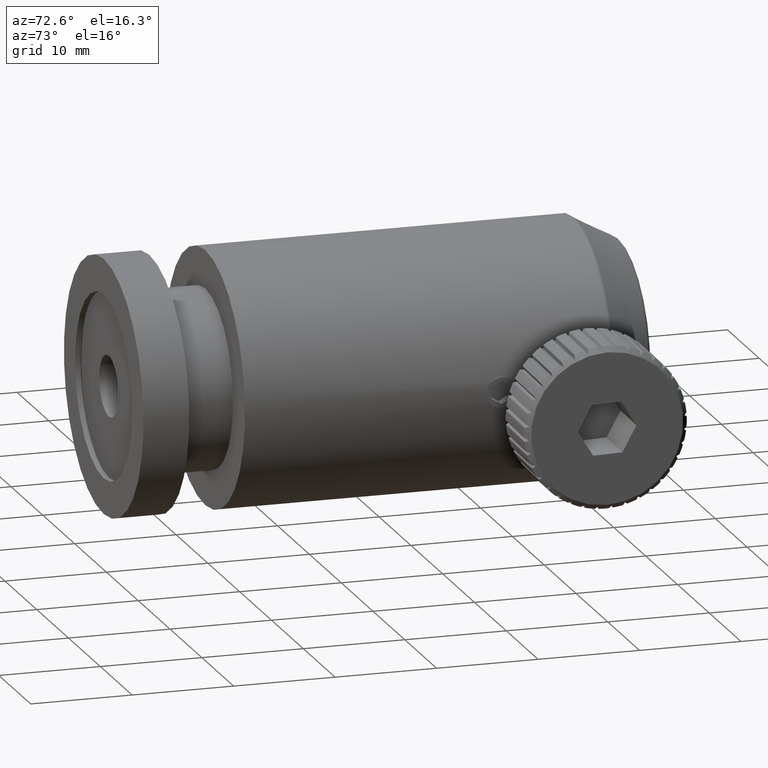
[diagram: clean part render]
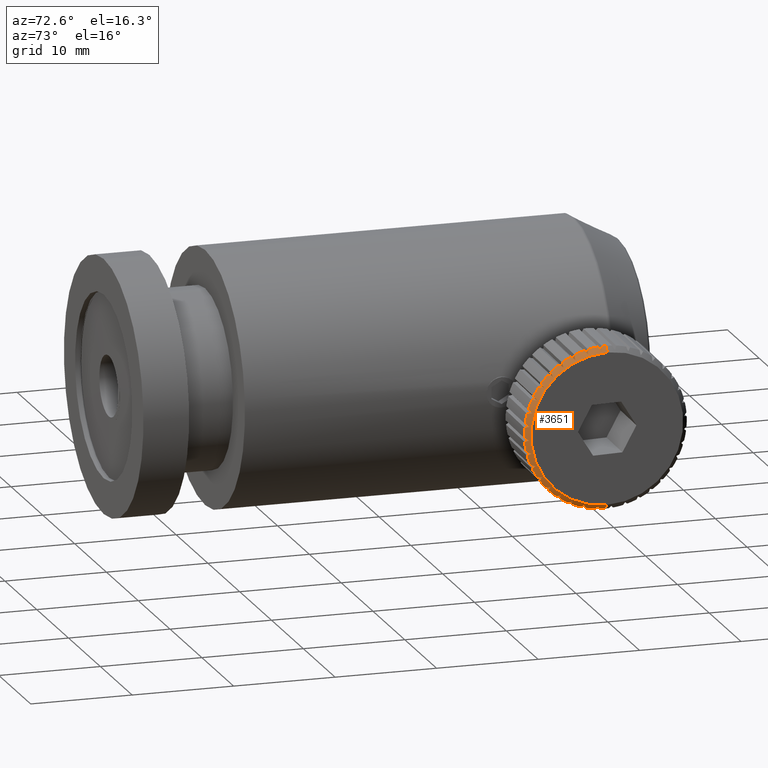
[diagram: same view with one face highlighted and labeled with its STEP entity id]
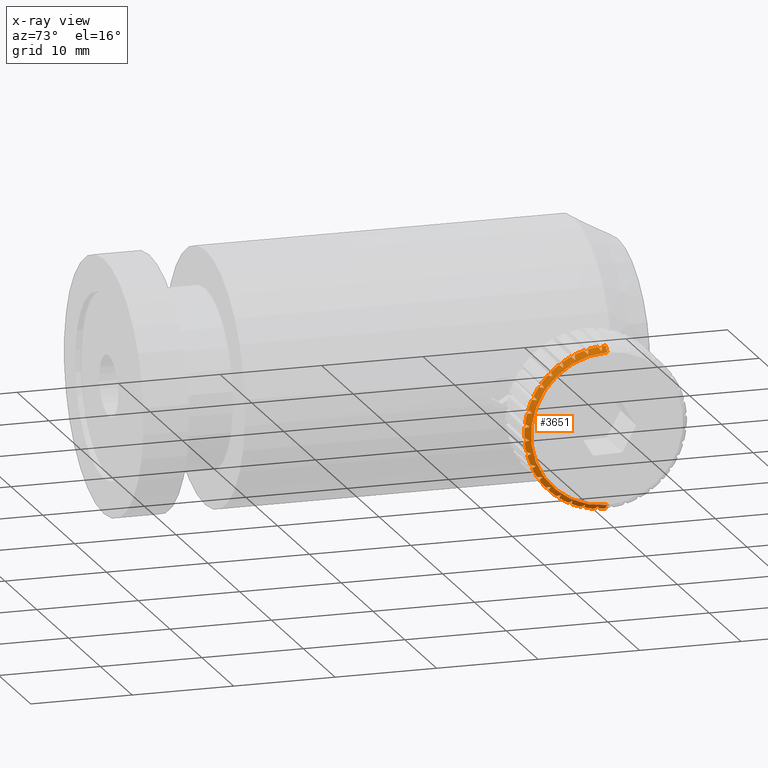
[diagram: x-ray of the same camera — body ghosted, the highlighted face saturated]
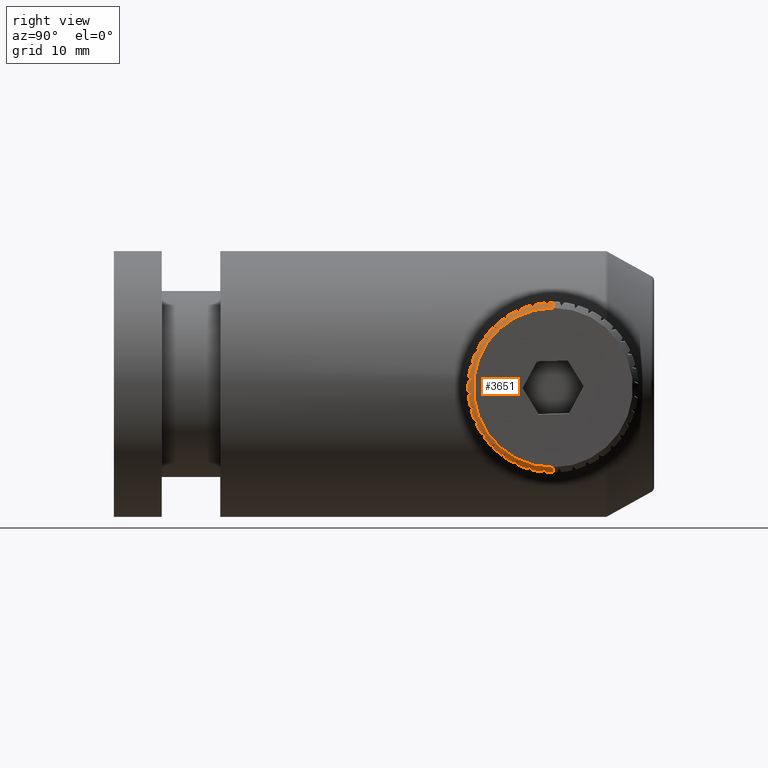
[diagram: same view with one face highlighted and labeled with its STEP entity id]
A machine part, auxiliary view. The second image highlights one B-rep face of the part: STEP entity #3651.
The next image is the same camera in x-ray: the body ghosted, the highlighted face saturated — about 0% of this face is hidden behind the body in this view.
A second angle (right view) of the same face is appended — the face is thin or edge-on in the first view.
In plain terms, the highlighted conical surface has half-angle 45 deg.
Its self-contained STEP definition (entity closure, byte-faithful):
#14 = EDGE_CURVE ( 'NONE', #3196, #429, #2690, .T. ) ;
#27 = ORIENTED_EDGE ( 'NONE', *, *, #4720, .T. ) ;
#38 = ORIENTED_EDGE ( 'NONE', *, *, #481, .T. ) ;
#41 = CIRCLE ( 'NONE', #3111, 8.000000000000000000 ) ;
#58 = CARTESIAN_POINT ( 'NONE',  ( 20.75757565068358400, 25.81499106419347100, 1.664058057186805800 ) ) ;
#63 = DIRECTION ( 'NONE',  ( -0.9999240596820524500, -1.348150961071062400E-033, 0.01232375222744032000 ) ) ;
#67 = B_SPLINE_CURVE_WITH_KNOTS ( 'NONE', 3,
 ( #3313, #4292, #3186, #4681 ),
 .UNSPECIFIED., .F., .F.,
 ( 4, 4 ),
 ( 0.0000000000000000000, 0.0005324411408961824500 ),
 .UNSPECIFIED. ) ;
#73 = VERTEX_POINT ( 'NONE', #2910 ) ;
#85 = EDGE_CURVE ( 'NONE', #1852, #702, #4937, .T. ) ;
#125 = AXIS2_PLACEMENT_3D ( 'NONE', #4686, #272, #1589 ) ;
#128 = ORIENTED_EDGE ( 'NONE', *, *, #85, .T. ) ;
#130 = CARTESIAN_POINT ( 'NONE',  ( 20.97145901216604000, 25.12059719410934400, 9.514513426488571600 ) ) ;
#148 = B_SPLINE_CURVE_WITH_KNOTS ( 'NONE', 3,
 ( #4193, #4240, #5522, #2451 ),
 .UNSPECIFIED., .F., .F.,
 ( 4, 4 ),
 ( 0.0000000000000000000, 0.0005324411408961811500 ),
 .UNSPECIFIED. ) ;
#149 = VERTEX_POINT ( 'NONE', #3881 ) ;
#153 = CARTESIAN_POINT ( 'NONE',  ( 20.65928727422893700, 25.18967221521239000, -6.310859856632926100 ) ) ;
#162 = CARTESIAN_POINT ( 'NONE',  ( 21.16285707547740100, 19.61974459652797300, 6.147323410354159600 ) ) ;
#171 = EDGE_CURVE ( 'NONE', #2620, #3217, #3599, .T. ) ;
#194 = CARTESIAN_POINT ( 'NONE',  ( 21.08400180696556000, 23.86060426881147500, 9.177157633810844900 ) ) ;
#195 = B_SPLINE_CURVE_WITH_KNOTS ( 'NONE', 3,
 ( #3059, #1369, #948, #2160 ),
 .UNSPECIFIED., .F., .F.,
 ( 4, 4 ),
 ( 1.734723475976807100E-018, 0.0005324411132999608100 ),
 .UNSPECIFIED. ) ;
#201 = CARTESIAN_POINT ( 'NONE',  ( 20.85377515683226700, 24.06399457958404400, 9.469489305100157800 ) ) ;
#219 = CARTESIAN_POINT ( 'NONE',  ( 20.75757565068358400, 25.81499106419347100, 1.664058057186806000 ) ) ;
#224 = VERTEX_POINT ( 'NONE', #4916 ) ;
#230 = ORIENTED_EDGE ( 'NONE', *, *, #618, .T. ) ;
#237 = CARTESIAN_POINT ( 'NONE',  ( 20.75757565068358400, 25.81499106419347100, 1.664058057186805800 ) ) ;
#253 = ORIENTED_EDGE ( 'NONE', *, *, #3613, .T. ) ;
#265 = CARTESIAN_POINT ( 'NONE',  ( 20.79843378462173900, 18.53432205375644100, 4.979203510006776400 ) ) ;
#267 = CARTESIAN_POINT ( 'NONE',  ( 20.81339366844666100, 19.22064446198681200, 6.193017897907243900 ) ) ;
#272 = DIRECTION ( 'NONE',  ( -0.9999240596820524500, -1.348150961071062400E-033, 0.01232375222744032000 ) ) ;
#312 = VERTEX_POINT ( 'NONE', #2846 ) ;
#325 = CARTESIAN_POINT ( 'NONE',  ( 20.96930597826873900, 24.02741723373394200, 9.339820460752090300 ) ) ;
#333 = CARTESIAN_POINT ( 'NONE',  ( 21.10084147263923200, 18.18437789859295600, 1.115504187674670100 ) ) ;
#351 = CARTESIAN_POINT ( 'NONE',  ( 21.08461388591127100, 18.39481761667304100, -0.2011690219452357800 ) ) ;
#355 = CIRCLE ( 'NONE', #1811, 8.000000000000000000 ) ;
#365 = ORIENTED_EDGE ( 'NONE', *, *, #5472, .F. ) ;
#373 = AXIS2_PLACEMENT_3D ( 'NONE', #4078, #4978, #1476 ) ;
#375 = ORIENTED_EDGE ( 'NONE', *, *, #4449, .F. ) ;
#377 = CARTESIAN_POINT ( 'NONE',  ( 20.67630855705612100, 21.28568726670259500, -4.929787768242240600 ) ) ;
#380 = VERTEX_POINT ( 'NONE', #5046 ) ;
#389 = CARTESIAN_POINT ( 'NONE',  ( 20.77020033643559000, 17.88085180762996600, 2.688399247790608500 ) ) ;
#399 = CARTESIAN_POINT ( 'NONE',  ( 21.00206347251236100, 18.09714080968916200, 2.528847058926837000 ) ) ;
#411 = CARTESIAN_POINT ( 'NONE',  ( 20.69078806807229800, 19.93027418542668600, -3.754949847915953300 ) ) ;
#420 = EDGE_CURVE ( 'NONE', #1180, #530, #148, .T. ) ;
#426 = DIRECTION ( 'NONE',  ( -0.01232375222744034100, -1.084202172485504400E-014, -0.9999240596820524500 ) ) ;
#429 = VERTEX_POINT ( 'NONE', #5114 ) ;
#469 = CARTESIAN_POINT ( 'NONE',  ( 20.84856654274701200, 22.73509430130690100, 9.046873007293729800 ) ) ;
#478 = CARTESIAN_POINT ( 'NONE',  ( 21.18563438179998900, 21.52832253850988300, 7.995427476905117500 ) ) ;
#480 = CARTESIAN_POINT ( 'NONE',  ( 20.81888967044625700, 19.36172780813345200, -2.864651720670019500 ) ) ;
#481 = EDGE_CURVE ( 'NONE', #224, #2334, #4059, .T. ) ;
#508 = ORIENTED_EDGE ( 'NONE', *, *, #14, .T. ) ;
#514 = ORIENTED_EDGE ( 'NONE', *, *, #5056, .F. ) ;
#518 = CARTESIAN_POINT ( 'NONE',  ( 20.70439599867392700, 19.07860394488771000, -2.650830180469357300 ) ) ;
#529 = CARTESIAN_POINT ( 'NONE',  ( 21.07017774199532700, 21.40765609969576000, 8.055499624370915200 ) ) ;
#530 = VERTEX_POINT ( 'NONE', #265 ) ;
#539 = B_SPLINE_CURVE_WITH_KNOTS ( 'NONE', 3,
 ( #5239, #5303, #480, #1325 ),
 .UNSPECIFIED., .F., .F.,
 ( 4, 4 ),
 ( 0.0000000000000000000, 0.0005324411408961771400 ),
 .UNSPECIFIED. ) ;
#551 = DIRECTION ( 'NONE',  ( -0.9999240596820524500, 2.374008358027187900E-016, 0.01232375222744039500 ) ) ;
#581 = CARTESIAN_POINT ( 'NONE',  ( 21.08461388591127100, 18.39481761667304100, -0.2011690219452357800 ) ) ;
#585 = VERTEX_POINT ( 'NONE', #1226 ) ;
#589 = VERTEX_POINT ( 'NONE', #5092 ) ;
#591 = ORIENTED_EDGE ( 'NONE', *, *, #4168, .T. ) ;
#600 = EDGE_CURVE ( 'NONE', #4120, #5391, #4898, .T. ) ;
#602 = CARTESIAN_POINT ( 'NONE',  ( 20.93033533614570600, 19.35328310115287200, 6.177821742244614900 ) ) ;
#617 = CARTESIAN_POINT ( 'NONE',  ( 20.75757565068358400, 25.81499106419347100, 1.664058057186806000 ) ) ;
#618 = EDGE_CURVE ( 'NONE', #5139, #652, #1301, .T. ) ;
#629 = CIRCLE ( 'NONE', #2979, 8.000000000000000000 ) ;
#633 = EDGE_CURVE ( 'NONE', #2202, #2620, #1023, .T. ) ;
#652 = VERTEX_POINT ( 'NONE', #2494 ) ;
#659 = CARTESIAN_POINT ( 'NONE',  ( 20.96269608382697000, 22.47676278650946800, 8.803507336963669200 ) ) ;
#675 = CARTESIAN_POINT ( 'NONE',  ( 20.83354731924152500, 18.67355610874809800, -1.675360065152675900 ) ) ;
#677 = ORIENTED_EDGE ( 'NONE', *, *, #2929, .T. ) ;
#699 = CARTESIAN_POINT ( 'NONE',  ( 20.75302950396202900, 17.82350072088520700, 1.295193006848964500 ) ) ;
#702 = VERTEX_POINT ( 'NONE', #2995 ) ;
#705 = ORIENTED_EDGE ( 'NONE', *, *, #812, .T. ) ;
#718 = EDGE_CURVE ( 'NONE', #3996, #73, #1746, .T. ) ;
#719 = EDGE_LOOP ( 'NONE', ( #5266, #2295, #705, #514, #2662, #508, #3067, #1666, #3451, #4517, #3028, #1368, #5445, #1196, #4436, #365, #591, #38, #2115, #3295, #3020, #2864, #27, #4534, #3555, #5152, #128, #1312, #4009, #936, #5637, #1516, #1853, #4822, #5213, #2130, #1086, #3959, #1415, #375, #253, #4593, #3048, #3082, #230, #1585, #3890, #4809, #2431, #677, #4289, #3231, #4787, #5527, #3792, #1119, #4896, #5257 ) ) ;
#743 = CARTESIAN_POINT ( 'NONE',  ( 20.77789880041356000, 25.13526407178872500, -6.190567108820250300 ) ) ;
#746 = CARTESIAN_POINT ( 'NONE',  ( 21.01841718744234600, 18.36507313053842700, 3.855754052988150000 ) ) ;
#748 = CARTESIAN_POINT ( 'NONE',  ( 20.86612927938140800, 17.96249602343241800, 0.9682735664071626700 ) ) ;
#759 = CIRCLE ( 'NONE', #125, 8.000000000000000000 ) ;
#760 = CIRCLE ( 'NONE', #834, 8.000000000000000000 ) ;
#785 = CARTESIAN_POINT ( 'NONE',  ( 20.89608629864197200, 25.08070176916001500, -6.069924157371673300 ) ) ;
#803 = VERTEX_POINT ( 'NONE', #4032 ) ;
#812 = EDGE_CURVE ( 'NONE', #2779, #830, #5411, .T. ) ;
#814 = AXIS2_PLACEMENT_3D ( 'NONE', #4010, #1004, #1399 ) ;
#818 = CARTESIAN_POINT ( 'NONE',  ( 20.67920944437215900, 20.96074857051657100, -4.694415702316321800 ) ) ;
#830 = VERTEX_POINT ( 'NONE', #4852 ) ;
#834 = AXIS2_PLACEMENT_3D ( 'NONE', #945, #5237, #3957 ) ;
#836 = VERTEX_POINT ( 'NONE', #4456 ) ;
#896 = CARTESIAN_POINT ( 'NONE',  ( 20.91863117977943200, 18.78443330064394700, 5.228170423966376200 ) ) ;
#924 = AXIS2_PLACEMENT_3D ( 'NONE', #58, #3529, #4421 ) ;
#936 = ORIENTED_EDGE ( 'NONE', *, *, #5326, .T. ) ;
#943 = B_SPLINE_CURVE_WITH_KNOTS ( 'NONE', 3,
 ( #5031, #4171, #4971, #2400 ),
 .UNSPECIFIED., .F., .F.,
 ( 4, 4 ),
 ( 0.0000000000000000000, 0.0005324411408961842900 ),
 .UNSPECIFIED. ) ;
#945 = CARTESIAN_POINT ( 'NONE',  ( 20.75757565068358400, 25.81499106419347100, 1.664058057186806000 ) ) ;
#948 = CARTESIAN_POINT ( 'NONE',  ( 21.08689454220375800, 25.32935391003119500, 9.411867597142498100 ) ) ;
#955 = AXIS2_PLACEMENT_3D ( 'NONE', #1691, #5639, #3899 ) ;
#996 = DIRECTION ( 'NONE',  ( 0.01232375222744023500, 0.0000000000000000000, 0.9999240596820524500 ) ) ;
#1002 = EDGE_CURVE ( 'NONE', #1721, #4120, #3978, .T. ) ;
#1004 = DIRECTION ( 'NONE',  ( -0.9999240596820524500, -1.348150961071062400E-033, 0.01232375222744032000 ) ) ;
#1009 = CARTESIAN_POINT ( 'NONE',  ( 21.11727286625145800, 18.20579050027307800, 2.448713871198116000 ) ) ;
#1022 = DIRECTION ( 'NONE',  ( -0.01232375222744034100, 0.0000000000000000000, -0.9999240596820524500 ) ) ;
#1023 = B_SPLINE_CURVE_WITH_KNOTS ( 'NONE', 3,
 ( #2913, #3371, #2510, #1201 ),
 .UNSPECIFIED., .F., .F.,
 ( 4, 4 ),
 ( 8.673617379884035500E-019, 0.0005324411408961726900 ),
 .UNSPECIFIED. ) ;
#1033 = CIRCLE ( 'NONE', #373, 8.000000000000000000 ) ;
#1077 = EDGE_CURVE ( 'NONE', #1686, #803, #943, .T. ) ;
#1086 = ORIENTED_EDGE ( 'NONE', *, *, #4691, .F. ) ;
#1092 = CARTESIAN_POINT ( 'NONE',  ( 20.66347501111357900, 23.42838648187210300, -5.971075447688871700 ) ) ;
#1094 = DIRECTION ( 'NONE',  ( -0.9999240596820524500, -1.348150961071062400E-033, 0.01232375222744032000 ) ) ;
#1112 = CARTESIAN_POINT ( 'NONE',  ( 20.75757565068358400, 25.81499106419347100, 1.664058057186806000 ) ) ;
#1119 = ORIENTED_EDGE ( 'NONE', *, *, #1002, .T. ) ;
#1127 = CARTESIAN_POINT ( 'NONE',  ( 21.06908317307874900, 18.83071555016709600, -1.461299308456103700 ) ) ;
#1129 = DIRECTION ( 'NONE',  ( -0.9999240596820524500, -1.348150961071062400E-033, 0.01232375222744032000 ) ) ;
#1131 = CARTESIAN_POINT ( 'NONE',  ( 20.82665755004713000, 20.10733275482484600, 7.269222132811677300 ) ) ;
#1146 = DIRECTION ( 'NONE',  ( -0.01232375222744034100, 0.0000000000000000000, -0.9999240596820524500 ) ) ;
#1157 = CARTESIAN_POINT ( 'NONE',  ( 20.76528192524157400, 17.83946748657745800, 2.289329419255707000 ) ) ;
#1159 = EDGE_CURVE ( 'NONE', #3358, #4782, #5224, .T. ) ;
#1180 = VERTEX_POINT ( 'NONE', #2923 ) ;
#1196 = ORIENTED_EDGE ( 'NONE', *, *, #2780, .T. ) ;
#1201 = CARTESIAN_POINT ( 'NONE',  ( 21.16285707547740100, 19.61974459652797300, 6.147323410354159600 ) ) ;
#1208 = B_SPLINE_CURVE_WITH_KNOTS ( 'NONE', 3,
 ( #699, #2884, #5524, #3343 ),
 .UNSPECIFIED., .F., .F.,
 ( 4, 4 ),
 ( 5.024899865237389500E-018, 0.0005324411408961752900 ),
 .UNSPECIFIED. ) ;
#1219 = CARTESIAN_POINT ( 'NONE',  ( 20.88634740982360000, 17.98884331790920400, 2.608731334287153600 ) ) ;
#1226 = CARTESIAN_POINT ( 'NONE',  ( 20.71510529199201400, 18.59532561300570200, -1.781900015912498200 ) ) ;
#1228 = EDGE_CURVE ( 'NONE', #4953, #429, #629, .T. ) ;
#1238 = CARTESIAN_POINT ( 'NONE',  ( 20.77020033643559000, 17.88085180762996600, 2.688399247790608500 ) ) ;
#1248 = AXIS2_PLACEMENT_3D ( 'NONE', #4058, #2752, #1022 ) ;
#1261 = CARTESIAN_POINT ( 'NONE',  ( 21.07908674212100000, 22.70754764976361500, 8.778358661564064700 ) ) ;
#1267 = CARTESIAN_POINT ( 'NONE',  ( 20.71961976609167200, 18.43161541819247500, -1.415604817360371700 ) ) ;
#1301 = B_SPLINE_CURVE_WITH_KNOTS ( 'NONE', 3,
 ( #2485, #4705, #4648, #5544 ),
 .UNSPECIFIED., .F., .F.,
 ( 4, 4 ),
 ( 0.0000000000000000000, 0.0005324411408961796300 ),
 .UNSPECIFIED. ) ;
#1312 = ORIENTED_EDGE ( 'NONE', *, *, #4219, .F. ) ;
#1319 = VERTEX_POINT ( 'NONE', #1736 ) ;
#1322 = EDGE_CURVE ( 'NONE', #4254, #2955, #1575, .T. ) ;
#1325 = CARTESIAN_POINT ( 'NONE',  ( 20.70030044892462600, 19.30343833836783300, -2.983134713729433500 ) ) ;
#1326 = CARTESIAN_POINT ( 'NONE',  ( 20.75757565068358100, 25.81499106419347100, 1.664058057186806000 ) ) ;
#1329 = CARTESIAN_POINT ( 'NONE',  ( 20.96404309767120100, 22.72134046049580600, 8.912801089087221100 ) ) ;
#1338 = B_SPLINE_CURVE_WITH_KNOTS ( 'NONE', 3,
 ( #2096, #2837, #2977, #3003 ),
 .UNSPECIFIED., .F., .F.,
 ( 4, 4 ),
 ( 0.0000000000000000000, 0.0005324411408961755100 ),
 .UNSPECIFIED. ) ;
#1361 = CARTESIAN_POINT ( 'NONE',  ( 20.75757565068358400, 25.81499106419347100, 1.664058057186805800 ) ) ;
#1362 = CIRCLE ( 'NONE', #3095, 8.000000000000000000 ) ;
#1368 = ORIENTED_EDGE ( 'NONE', *, *, #3769, .T. ) ;
#1369 = CARTESIAN_POINT ( 'NONE',  ( 20.97169390335596300, 25.38780853325458900, 9.533571820189099100 ) ) ;
#1399 = DIRECTION ( 'NONE',  ( -0.01232375222744034100, 0.0000000000000000000, -0.9999240596820524500 ) ) ;
#1415 = ORIENTED_EDGE ( 'NONE', *, *, #3854, .T. ) ;
#1422 = CARTESIAN_POINT ( 'NONE',  ( 20.93842422905619200, 19.34500459818307400, -2.634711043945321000 ) ) ;
#1424 = CARTESIAN_POINT ( 'NONE',  ( 20.88306360435444400, 17.96121283838063900, 2.342290072297884300 ) ) ;
#1434 = EDGE_CURVE ( 'NONE', #1715, #2365, #539, .T. ) ;
#1450 = CARTESIAN_POINT ( 'NONE',  ( 20.92538283742224100, 20.18932794833977000, -3.692862897849535000 ) ) ;
#1474 = CARTESIAN_POINT ( 'NONE',  ( 21.01377516538519400, 25.02596201783262200, -5.948877974856358700 ) ) ;
#1476 = DIRECTION ( 'NONE',  ( -0.01232375222744034100, 0.0000000000000000000, -0.9999240596820524500 ) ) ;
#1492 = B_SPLINE_CURVE_WITH_KNOTS ( 'NONE', 3,
 ( #5447, #4544, #659, #4976 ),
 .UNSPECIFIED., .F., .F.,
 ( 4, 4 ),
 ( 0.0000000000000000000, 0.0005324411022510849100 ),
 .UNSPECIFIED. ) ;
#1516 = ORIENTED_EDGE ( 'NONE', *, *, #4492, .T. ) ;
#1546 = B_SPLINE_CURVE_WITH_KNOTS ( 'NONE', 3,
 ( #333, #4258, #748, #4732 ),
 .UNSPECIFIED., .F., .F.,
 ( 4, 4 ),
 ( 0.0000000000000000000, 0.0005324411408961738900 ),
 .UNSPECIFIED. ) ;
#1567 = CARTESIAN_POINT ( 'NONE',  ( 21.19899342165304600, 23.95393595884236100, 9.079354725128636600 ) ) ;
#1575 = LINE ( 'NONE', #5207, #3348 ) ;
#1585 = ORIENTED_EDGE ( 'NONE', *, *, #2554, .F. ) ;
#1589 = DIRECTION ( 'NONE',  ( -0.01232375222744034100, 0.0000000000000000000, -0.9999240596820524500 ) ) ;
#1595 = CARTESIAN_POINT ( 'NONE',  ( 21.34996582223040200, 25.81499106419347100, 9.157326628688489100 ) ) ;
#1656 = EDGE_CURVE ( 'NONE', #3659, #4323, #5181, .T. ) ;
#1666 = ORIENTED_EDGE ( 'NONE', *, *, #4476, .T. ) ;
#1686 = VERTEX_POINT ( 'NONE', #2229 ) ;
#1691 = CARTESIAN_POINT ( 'NONE',  ( 20.75757565068358400, 25.81499106419347100, 1.664058057186805800 ) ) ;
#1707 = CARTESIAN_POINT ( 'NONE',  ( 21.04196442811584300, 20.31945990566140400, -3.661658830161725700 ) ) ;
#1715 = VERTEX_POINT ( 'NONE', #1777 ) ;
#1721 = VERTEX_POINT ( 'NONE', #1798 ) ;
#1736 = CARTESIAN_POINT ( 'NONE',  ( 21.03120038532841500, 21.32707158376096100, -4.535031254725102400 ) ) ;
#1741 = DIRECTION ( 'NONE',  ( -0.9999240596820524500, -1.348150961071062400E-033, 0.01232375222744032000 ) ) ;
#1746 = B_SPLINE_CURVE_WITH_KNOTS ( 'NONE', 3,
 ( #1267, #5160, #3052, #4770 ),
 .UNSPECIFIED., .F., .F.,
 ( 4, 4 ),
 ( 2.168404344971008900E-019, 0.0005324411408961814700 ),
 .UNSPECIFIED. ) ;
#1777 = CARTESIAN_POINT ( 'NONE',  ( 21.05472122699215700, 19.47882716094090600, -2.626598250758988200 ) ) ;
#1787 = CARTESIAN_POINT ( 'NONE',  ( 20.85257221387587400, 23.67480885510590100, 9.371884973048802100 ) ) ;
#1798 = CARTESIAN_POINT ( 'NONE',  ( 20.65979728434768600, 24.79057207888624200, -6.269478678318915100 ) ) ;
#1799 = AXIS2_PLACEMENT_3D ( 'NONE', #3126, #3930, #3557 ) ;
#1810 = CARTESIAN_POINT ( 'NONE',  ( 21.06069898325461800, 20.46054492962904400, 7.286412519581056700 ) ) ;
#1811 = AXIS2_PLACEMENT_3D ( 'NONE', #1361, #4382, #5255 ) ;
#1814 = B_SPLINE_CURVE_WITH_KNOTS ( 'NONE', 3,
 ( #5034, #1988, #5218, #2612 ),
 .UNSPECIFIED., .F., .F.,
 ( 4, 4 ),
 ( 1.734723475976807100E-018, 0.0005324411408961851600 ),
 .UNSPECIFIED. ) ;
#1840 = EDGE_CURVE ( 'NONE', #1721, #1957, #4400, .T. ) ;
#1852 = VERTEX_POINT ( 'NONE', #4118 ) ;
#1853 = ORIENTED_EDGE ( 'NONE', *, *, #3442, .T. ) ;
#1879 = CARTESIAN_POINT ( 'NONE',  ( 21.04196442811584300, 20.31945990566140400, -3.661658830161725700 ) ) ;
#1885 = DIRECTION ( 'NONE',  ( -0.01232375222744034100, 0.0000000000000000000, -0.9999240596820524500 ) ) ;
#1887 = EDGE_CURVE ( 'NONE', #589, #4713, #2572, .T. ) ;
#1913 = VECTOR ( 'NONE', #2191, 1000.000000000000100 ) ;
#1914 = CARTESIAN_POINT ( 'NONE',  ( 21.18563438179998900, 21.52832253850988300, 7.995427476905117500 ) ) ;
#1944 = VERTEX_POINT ( 'NONE', #4174 ) ;
#1957 = VERTEX_POINT ( 'NONE', #4701 ) ;
#1987 = CONICAL_SURFACE ( 'NONE', #3879, 8.000000000000001800, 0.7853981633974437300 ) ;
#1988 = CARTESIAN_POINT ( 'NONE',  ( 20.95606517751202300, 21.50926269588006800, 8.265488465752095900 ) ) ;
#2019 = EDGE_CURVE ( 'NONE', #2955, #5391, #41, .T. ) ;
#2029 = VERTEX_POINT ( 'NONE', #5413 ) ;
#2032 = CARTESIAN_POINT ( 'NONE',  ( 21.08461388591127100, 18.39481761667304100, -0.2011690219452357800 ) ) ;
#2096 = CARTESIAN_POINT ( 'NONE',  ( 21.01688832155534200, 23.71662533055851400, -5.696282848093844100 ) ) ;
#2098 = CARTESIAN_POINT ( 'NONE',  ( 20.78804396541905300, 22.24916454880482400, -5.367409162180592800 ) ) ;
#2104 = CARTESIAN_POINT ( 'NONE',  ( 20.74809725215794400, 17.85204813203920800, 0.8950001795106034000 ) ) ;
#2115 = ORIENTED_EDGE ( 'NONE', *, *, #3074, .F. ) ;
#2118 = CARTESIAN_POINT ( 'NONE',  ( 20.75757565068358400, 25.81499106419347100, 1.664058057186805800 ) ) ;
#2124 = CARTESIAN_POINT ( 'NONE',  ( 20.70030044892462600, 19.30343833836783300, -2.983134713729433500 ) ) ;
#2125 = CARTESIAN_POINT ( 'NONE',  ( 20.65898563286405900, 25.81499106419347100, -6.335334420269613400 ) ) ;
#2130 = ORIENTED_EDGE ( 'NONE', *, *, #1159, .T. ) ;
#2147 = CARTESIAN_POINT ( 'NONE',  ( 21.19362152349766500, 22.69370996641551100, 8.643489891707870900 ) ) ;
#2160 = CARTESIAN_POINT ( 'NONE',  ( 21.20158682861517000, 25.27070916890598800, 9.289778463784749400 ) ) ;
#2166 = CIRCLE ( 'NONE', #4625, 7.500000000000011500 ) ;
#2191 = DIRECTION ( 'NONE',  ( -0.6983388745030786300, 1.678677408554573200E-016, 0.7157672920424439400 ) ) ;
#2202 = VERTEX_POINT ( 'NONE', #2532 ) ;
#2208 = CARTESIAN_POINT ( 'NONE',  ( 20.80288114559283800, 18.70971088069327900, 5.340053286521376600 ) ) ;
#2213 = B_SPLINE_CURVE_WITH_KNOTS ( 'NONE', 3,
 ( #1238, #1219, #399, #4714 ),
 .UNSPECIFIED., .F., .F.,
 ( 4, 4 ),
 ( 8.498374721940738900E-018, 0.0005324411408961800700 ),
 .UNSPECIFIED. ) ;
#2217 = VERTEX_POINT ( 'NONE', #389 ) ;
#2219 = CARTESIAN_POINT ( 'NONE',  ( 20.85606079760249500, 25.44609799999907900, 9.654941524177525400 ) ) ;
#2224 = DIRECTION ( 'NONE',  ( -0.01232375222744034100, 0.0000000000000000000, -0.9999240596820524500 ) ) ;
#2229 = CARTESIAN_POINT ( 'NONE',  ( 21.02275615862309600, 22.47104642427662600, -5.220178545276524100 ) ) ;
#2256 = VERTEX_POINT ( 'NONE', #2104 ) ;
#2289 = VERTEX_POINT ( 'NONE', #2208 ) ;
#2295 = ORIENTED_EDGE ( 'NONE', *, *, #4903, .T. ) ;
#2314 = CARTESIAN_POINT ( 'NONE',  ( 20.85265720031953800, 18.13720225501580100, -0.1248233848531314900 ) ) ;
#2334 = VERTEX_POINT ( 'NONE', #3426 ) ;
#2345 = CARTESIAN_POINT ( 'NONE',  ( 20.67630855705612100, 21.28568726670259500, -4.929787768242240600 ) ) ;
#2365 = VERTEX_POINT ( 'NONE', #2124 ) ;
#2370 = DIRECTION ( 'NONE',  ( -0.9999240596820524500, -1.348150961071062400E-033, 0.01232375222744032000 ) ) ;
#2400 = CARTESIAN_POINT ( 'NONE',  ( 20.66785048974895000, 22.49959383905412800, -5.616058056930714100 ) ) ;
#2405 = VERTEX_POINT ( 'NONE', #2219 ) ;
#2406 = B_SPLINE_CURVE_WITH_KNOTS ( 'NONE', 3,
 ( #4783, #896, #2622, #4409 ),
 .UNSPECIFIED., .F., .F.,
 ( 4, 4 ),
 ( 6.009258394948636900E-018, 0.0005324411408961773500 ),
 .UNSPECIFIED. ) ;
#2423 = AXIS2_PLACEMENT_3D ( 'NONE', #1112, #2370, #1146 ) ;
#2427 = EDGE_CURVE ( 'NONE', #5485, #3358, #3524, .T. ) ;
#2431 = ORIENTED_EDGE ( 'NONE', *, *, #1656, .F. ) ;
#2443 = DIRECTION ( 'NONE',  ( -0.01232375222744034100, 3.035766082959412400E-014, -0.9999240596820524500 ) ) ;
#2445 = CARTESIAN_POINT ( 'NONE',  ( 21.16285707547740100, 19.61974459652797300, 6.147323410354159600 ) ) ;
#2451 = CARTESIAN_POINT ( 'NONE',  ( 20.79843378462173900, 18.53432205375644100, 4.979203510006776400 ) ) ;
#2453 = CARTESIAN_POINT ( 'NONE',  ( 20.75757565068358400, 25.81499106419347100, 1.664058057186806000 ) ) ;
#2454 = CARTESIAN_POINT ( 'NONE',  ( 20.85377515683226700, 24.06399457958404400, 9.469489305100157800 ) ) ;
#2485 = CARTESIAN_POINT ( 'NONE',  ( 21.04196442811584300, 20.31945990566140400, -3.661658830161725700 ) ) ;
#2494 = CARTESIAN_POINT ( 'NONE',  ( 20.68723588388003200, 20.20940129829951100, -4.043166810795082900 ) ) ;
#2504 = EDGE_CURVE ( 'NONE', #5654, #5139, #3025, .T. ) ;
#2510 = CARTESIAN_POINT ( 'NONE',  ( 21.04818721644694400, 19.56500484955211000, 6.271233341256528400 ) ) ;
#2532 = CARTESIAN_POINT ( 'NONE',  ( 20.81739813242757000, 19.45603440349973900, 6.517931918145361400 ) ) ;
#2551 = CARTESIAN_POINT ( 'NONE',  ( 20.84059321645002400, 21.49977512766714600, 8.399933613112958500 ) ) ;
#2554 = EDGE_CURVE ( 'NONE', #3551, #652, #3373, .T. ) ;
#2559 = CARTESIAN_POINT ( 'NONE',  ( 21.13340880716772200, 18.45840481064664500, 3.757951127027887100 ) ) ;
#2564 = CARTESIAN_POINT ( 'NONE',  ( 21.02275615862309600, 22.47104642427662600, -5.220178545276524100 ) ) ;
#2572 = B_SPLINE_CURVE_WITH_KNOTS ( 'NONE', 3,
 ( #5395, #194, #3215, #4590 ),
 .UNSPECIFIED., .F., .F.,
 ( 4, 4 ),
 ( 0.0000000000000000000, 0.0005324411022510809000 ),
 .UNSPECIFIED. ) ;
#2577 = CIRCLE ( 'NONE', #3973, 8.000000000000000000 ) ;
#2585 = CIRCLE ( 'NONE', #3147, 8.000000000000000000 ) ;
#2597 = CARTESIAN_POINT ( 'NONE',  ( 20.78698757422098400, 18.17927770081723100, 4.050481399997404500 ) ) ;
#2612 = CARTESIAN_POINT ( 'NONE',  ( 21.18563438179998900, 21.52832253850988300, 7.995427476905117500 ) ) ;
#2613 = EDGE_CURVE ( 'NONE', #3551, #1319, #67, .T. ) ;
#2620 = VERTEX_POINT ( 'NONE', #2445 ) ;
#2622 = CARTESIAN_POINT ( 'NONE',  ( 21.03394907830195500, 18.85936743796142800, 5.115979922208444100 ) ) ;
#2628 = CARTESIAN_POINT ( 'NONE',  ( 20.94561461107266400, 20.42801230964461800, 7.417550871165544500 ) ) ;
#2640 = DIRECTION ( 'NONE',  ( -0.9999240596820524500, -1.348150961071062400E-033, 0.01232375222744032000 ) ) ;
#2644 = CARTESIAN_POINT ( 'NONE',  ( 20.83009744342614100, 20.39557160665403400, 7.548328048682803300 ) ) ;
#2648 = B_SPLINE_CURVE_WITH_KNOTS ( 'NONE', 3,
 ( #5186, #2098, #5211, #2564 ),
 .UNSPECIFIED., .F., .F.,
 ( 4, 4 ),
 ( 8.673617379884035500E-019, 0.0005324411408961818000 ),
 .UNSPECIFIED. ) ;
#2662 = ORIENTED_EDGE ( 'NONE', *, *, #4704, .T. ) ;
#2674 = VERTEX_POINT ( 'NONE', #5065 ) ;
#2684 = CARTESIAN_POINT ( 'NONE',  ( 21.17527463213977900, 20.49318335030801900, 7.154858570102506500 ) ) ;
#2690 = B_SPLINE_CURVE_WITH_KNOTS ( 'NONE', 3,
 ( #4053, #5441, #130, #4479 ),
 .UNSPECIFIED., .F., .F.,
 ( 4, 4 ),
 ( 0.0000000000000000000, 0.0005324411022510901200 ),
 .UNSPECIFIED. ) ;
#2691 = DIRECTION ( 'NONE',  ( 0.01232375222744033800, 0.0000000000000000000, 0.9999240596820523400 ) ) ;
#2692 = CARTESIAN_POINT ( 'NONE',  ( 20.83782241309257400, 21.16744535717862900, 8.175116293628159200 ) ) ;
#2710 = CARTESIAN_POINT ( 'NONE',  ( 20.69078806807229800, 19.93027418542668600, -3.754949847915953300 ) ) ;
#2711 = CARTESIAN_POINT ( 'NONE',  ( 21.20158682861517000, 25.27070916890598800, 9.289778463784749400 ) ) ;
#2752 = DIRECTION ( 'NONE',  ( -0.9999240596820524500, -1.348150961071062400E-033, 0.01232375222744032000 ) ) ;
#2776 = CARTESIAN_POINT ( 'NONE',  ( 21.10084147263923200, 18.18437789859295600, 1.115504187674670100 ) ) ;
#2779 = VERTEX_POINT ( 'NONE', #1595 ) ;
#2780 = EDGE_CURVE ( 'NONE', #4047, #3775, #1814, .T. ) ;
#2788 = CIRCLE ( 'NONE', #924, 8.000000000000000000 ) ;
#2800 = EDGE_CURVE ( 'NONE', #149, #1957, #1338, .T. ) ;
#2837 = CARTESIAN_POINT ( 'NONE',  ( 20.89910524465759100, 23.74926375544455600, -5.824973049934057700 ) ) ;
#2838 = CARTESIAN_POINT ( 'NONE',  ( 20.95156483827912200, 18.75200826158583200, -1.568508877722687900 ) ) ;
#2846 = CARTESIAN_POINT ( 'NONE',  ( 20.84856654274701200, 22.73509430130690100, 9.046873007293729800 ) ) ;
#2864 = ORIENTED_EDGE ( 'NONE', *, *, #3205, .F. ) ;
#2867 = CARTESIAN_POINT ( 'NONE',  ( 20.66347501111357900, 23.42838648187210300, -5.971075447688871700 ) ) ;
#2871 = CARTESIAN_POINT ( 'NONE',  ( 21.05954878671648700, 20.36416655594103300, 7.193087924067112800 ) ) ;
#2884 = CARTESIAN_POINT ( 'NONE',  ( 20.86942232561332800, 17.94343618049133900, 1.235464604994441600 ) ) ;
#2896 = CARTESIAN_POINT ( 'NONE',  ( 21.01377516538519400, 25.02596201783262200, -5.948877974856358700 ) ) ;
#2898 = EDGE_CURVE ( 'NONE', #2217, #380, #2213, .T. ) ;
#2907 = DIRECTION ( 'NONE',  ( -0.9999240596820524500, -1.348150961071062400E-033, 0.01232375222744032000 ) ) ;
#2908 = CARTESIAN_POINT ( 'NONE',  ( 21.08440404298872700, 23.99073625019446600, 9.209793582689146200 ) ) ;
#2910 = CARTESIAN_POINT ( 'NONE',  ( 21.06908317307874900, 18.83071555016709600, -1.461299308456103700 ) ) ;
#2913 = CARTESIAN_POINT ( 'NONE',  ( 20.81739813242757000, 19.45603440349973900, 6.517931918145361400 ) ) ;
#2917 = DIRECTION ( 'NONE',  ( -0.01232375222744034100, -8.673617379884035500E-016, -0.9999240596820524500 ) ) ;
#2923 = CARTESIAN_POINT ( 'NONE',  ( 21.14875901298846400, 18.93454527172196600, 5.003435443651611100 ) ) ;
#2929 = EDGE_CURVE ( 'NONE', #3659, #1686, #2648, .T. ) ;
#2955 = VERTEX_POINT ( 'NONE', #2125 ) ;
#2977 = CARTESIAN_POINT ( 'NONE',  ( 20.78082384167545600, 23.78179637542898600, -5.953235241110522900 ) ) ;
#2979 = AXIS2_PLACEMENT_3D ( 'NONE', #2453, #2907, #426 ) ;
#2995 = CARTESIAN_POINT ( 'NONE',  ( 20.78223244707232100, 18.06921908921191300, 3.664660105066921400 ) ) ;
#3003 = CARTESIAN_POINT ( 'NONE',  ( 20.66211867605365900, 23.81423707841956600, -6.081125701408229400 ) ) ;
#3020 = ORIENTED_EDGE ( 'NONE', *, *, #171, .T. ) ;
#3025 = B_SPLINE_CURVE_WITH_KNOTS ( 'NONE', 3,
 ( #2710, #4920, #1450, #1879 ),
 .UNSPECIFIED., .F., .F.,
 ( 4, 4 ),
 ( 3.496446946337351300E-018, 0.0005324411408961770300 ),
 .UNSPECIFIED. ) ;
#3028 = ORIENTED_EDGE ( 'NONE', *, *, #5566, .T. ) ;
#3046 = CARTESIAN_POINT ( 'NONE',  ( 20.73120057541720500, 18.10657876905091600, -0.4759616257833660900 ) ) ;
#3048 = ORIENTED_EDGE ( 'NONE', *, *, #5235, .F. ) ;
#3052 = CARTESIAN_POINT ( 'NONE',  ( 20.95307434218194600, 18.69726851282498000, -1.446030817245604000 ) ) ;
#3059 = CARTESIAN_POINT ( 'NONE',  ( 20.85606079760249500, 25.44609799999907900, 9.654941524177525400 ) ) ;
#3067 = ORIENTED_EDGE ( 'NONE', *, *, #1228, .F. ) ;
#3074 = EDGE_CURVE ( 'NONE', #2202, #2334, #4537, .T. ) ;
#3082 = ORIENTED_EDGE ( 'NONE', *, *, #2504, .T. ) ;
#3095 = AXIS2_PLACEMENT_3D ( 'NONE', #3516, #1741, #3863 ) ;
#3111 = AXIS2_PLACEMENT_3D ( 'NONE', #617, #3616, #1885 ) ;
#3117 = DIRECTION ( 'NONE',  ( -0.9999240596820524500, 2.374008358027187900E-016, 0.01232375222744039500 ) ) ;
#3126 = CARTESIAN_POINT ( 'NONE',  ( 20.75757565068358400, 25.81499106419347100, 1.664058057186806000 ) ) ;
#3147 = AXIS2_PLACEMENT_3D ( 'NONE', #1326, #2640, #3556 ) ;
#3168 = CARTESIAN_POINT ( 'NONE',  ( 21.25753768052459900, 25.81499106419347100, 1.657896181073085700 ) ) ;
#3186 = CARTESIAN_POINT ( 'NONE',  ( 20.91434642336563200, 21.20458422554878900, -4.588334970328053200 ) ) ;
#3196 = VERTEX_POINT ( 'NONE', #2711 ) ;
#3205 = EDGE_CURVE ( 'NONE', #2289, #3217, #5014, .T. ) ;
#3215 = CARTESIAN_POINT ( 'NONE',  ( 20.96850282407165300, 23.76757514193166500, 9.274654368470422100 ) ) ;
#3217 = VERTEX_POINT ( 'NONE', #267 ) ;
#3231 = ORIENTED_EDGE ( 'NONE', *, *, #3304, .F. ) ;
#3258 = B_SPLINE_CURVE_WITH_KNOTS ( 'NONE', 3,
 ( #5517, #4636, #3765, #377 ),
 .UNSPECIFIED., .F., .F.,
 ( 4, 4 ),
 ( 0.0000000000000000000, 0.0005324411408961821300 ),
 .UNSPECIFIED. ) ;
#3260 = CARTESIAN_POINT ( 'NONE',  ( 20.73599680385613600, 18.00896702433263400, -0.08680545619287784200 ) ) ;
#3272 = CIRCLE ( 'NONE', #5329, 8.000000000000000000 ) ;
#3295 = ORIENTED_EDGE ( 'NONE', *, *, #633, .T. ) ;
#3304 = EDGE_CURVE ( 'NONE', #4996, #803, #4788, .T. ) ;
#3313 = CARTESIAN_POINT ( 'NONE',  ( 20.67920944437215900, 20.96074857051657100, -4.694415702316321800 ) ) ;
#3334 = EDGE_CURVE ( 'NONE', #1319, #4323, #3258, .T. ) ;
#3343 = CARTESIAN_POINT ( 'NONE',  ( 21.10084147263923200, 18.18437789859295600, 1.115504187674670100 ) ) ;
#3344 = AXIS2_PLACEMENT_3D ( 'NONE', #219, #1094, #4603 ) ;
#3348 = VECTOR ( 'NONE', #4710, 1000.000000000000000 ) ;
#3358 = VERTEX_POINT ( 'NONE', #351 ) ;
#3364 = CARTESIAN_POINT ( 'NONE',  ( 20.78223244707232100, 18.06921908921191300, 3.664660105066921400 ) ) ;
#3371 = CARTESIAN_POINT ( 'NONE',  ( 20.93300893951126800, 19.51044254692340000, 6.394752453113129700 ) ) ;
#3373 = CIRCLE ( 'NONE', #3376, 8.000000000000000000 ) ;
#3376 = AXIS2_PLACEMENT_3D ( 'NONE', #5111, #4731, #2917 ) ;
#3426 = CARTESIAN_POINT ( 'NONE',  ( 20.82665755004713000, 20.10733275482484600, 7.269222132811677300 ) ) ;
#3442 = EDGE_CURVE ( 'NONE', #4868, #2256, #1546, .T. ) ;
#3451 = ORIENTED_EDGE ( 'NONE', *, *, #1887, .T. ) ;
#3457 = CARTESIAN_POINT ( 'NONE',  ( 20.90291819283112000, 18.27204399437606600, 3.953250788361930600 ) ) ;
#3463 = CARTESIAN_POINT ( 'NONE',  ( 21.01377516538519400, 25.02596201783262200, -5.948877974856358700 ) ) ;
#3512 = CARTESIAN_POINT ( 'NONE',  ( 20.75302950396202900, 17.82350072088520700, 1.295193006848964500 ) ) ;
#3516 = CARTESIAN_POINT ( 'NONE',  ( 20.75757565068358800, 25.81499106419347100, 1.664058057186805800 ) ) ;
#3524 = B_SPLINE_CURVE_WITH_KNOTS ( 'NONE', 3,
 ( #4103, #2314, #5371, #581 ),
 .UNSPECIFIED., .F., .F.,
 ( 4, 4 ),
 ( 0.0000000000000000000, 0.0005324411408961766000 ),
 .UNSPECIFIED. ) ;
#3529 = DIRECTION ( 'NONE',  ( -0.9999240596820524500, -1.348150961071062400E-033, 0.01232375222744032000 ) ) ;
#3551 = VERTEX_POINT ( 'NONE', #818 ) ;
#3555 = ORIENTED_EDGE ( 'NONE', *, *, #4761, .F. ) ;
#3556 = DIRECTION ( 'NONE',  ( -0.01232375222744034100, 0.0000000000000000000, -0.9999240596820524500 ) ) ;
#3557 = DIRECTION ( 'NONE',  ( -0.01232375222744034100, 0.0000000000000000000, -0.9999240596820524500 ) ) ;
#3599 = B_SPLINE_CURVE_WITH_KNOTS ( 'NONE', 3,
 ( #162, #4108, #602, #3673 ),
 .UNSPECIFIED., .F., .F.,
 ( 4, 4 ),
 ( 0.0000000000000000000, 0.0005324411408961815800 ),
 .UNSPECIFIED. ) ;
#3601 = CARTESIAN_POINT ( 'NONE',  ( 20.76528192524157400, 17.83946748657745800, 2.289329419255707000 ) ) ;
#3613 = EDGE_CURVE ( 'NONE', #2029, #1715, #3683, .T. ) ;
#3616 = DIRECTION ( 'NONE',  ( -0.9999240596820524500, -1.348150961071062400E-033, 0.01232375222744032000 ) ) ;
#3617 = FACE_OUTER_BOUND ( 'NONE', #719, .T. ) ;
#3618 = CARTESIAN_POINT ( 'NONE',  ( 20.75757565068358100, 25.81499106419347100, 1.664058057186806000 ) ) ;
#3620 = CARTESIAN_POINT ( 'NONE',  ( 20.89625683063478700, 24.94725472746636900, -6.056087540129104800 ) ) ;
#3651 = ADVANCED_FACE ( 'NONE', ( #3617 ), #1987, .T. ) ;
#3659 = VERTEX_POINT ( 'NONE', #5364 ) ;
#3673 = CARTESIAN_POINT ( 'NONE',  ( 20.81339366844666100, 19.22064446198681200, 6.193017897907243900 ) ) ;
#3683 = B_SPLINE_CURVE_WITH_KNOTS ( 'NONE', 3,
 ( #518, #4462, #1422, #4884 ),
 .UNSPECIFIED., .F., .F.,
 ( 4, 4 ),
 ( 4.906538933386797400E-018, 0.0005324411408961735600 ),
 .UNSPECIFIED. ) ;
#3711 = DIRECTION ( 'NONE',  ( -0.01232375222744034100, 8.673617379884035500E-015, -0.9999240596820524500 ) ) ;
#3715 = CARTESIAN_POINT ( 'NONE',  ( 20.78698757422098400, 18.17927770081723100, 4.050481399997404500 ) ) ;
#3765 = CARTESIAN_POINT ( 'NONE',  ( 20.79505432941515200, 21.29944110822654600, -4.798602560306390400 ) ) ;
#3769 = EDGE_CURVE ( 'NONE', #5165, #2674, #1492, .T. ) ;
#3775 = VERTEX_POINT ( 'NONE', #1914 ) ;
#3792 = ORIENTED_EDGE ( 'NONE', *, *, #1840, .F. ) ;
#3794 = B_SPLINE_CURVE_WITH_KNOTS ( 'NONE', 3,
 ( #2644, #2628, #1810, #2684 ),
 .UNSPECIFIED., .F., .F.,
 ( 4, 4 ),
 ( 4.906538933386797400E-018, 0.0005324411408961764900 ),
 .UNSPECIFIED. ) ;
#3796 = CARTESIAN_POINT ( 'NONE',  ( 20.78172940656461900, 23.52418100956469300, -5.879759557441640400 ) ) ;
#3808 = CARTESIAN_POINT ( 'NONE',  ( 20.84945497086824800, 18.20237329674350200, -0.3846457355361375100 ) ) ;
#3838 = CARTESIAN_POINT ( 'NONE',  ( 20.65928727422893700, 25.18967221521239000, -6.310859856632926100 ) ) ;
#3850 = CARTESIAN_POINT ( 'NONE',  ( 20.89974340489222700, 18.19856273051664500, 3.695654985890426400 ) ) ;
#3854 = EDGE_CURVE ( 'NONE', #73, #585, #4542, .T. ) ;
#3863 = DIRECTION ( 'NONE',  ( -0.01232375222744034100, 0.0000000000000000000, -0.9999240596820524500 ) ) ;
#3879 = AXIS2_PLACEMENT_3D ( 'NONE', #4418, #3117, #2691 ) ;
#3881 = CARTESIAN_POINT ( 'NONE',  ( 21.01688832155534200, 23.71662533055851400, -5.696282848093844100 ) ) ;
#3890 = ORIENTED_EDGE ( 'NONE', *, *, #2613, .T. ) ;
#3897 = DIRECTION ( 'NONE',  ( -0.9999240596820524500, -1.348150961071062400E-033, 0.01232375222744032000 ) ) ;
#3899 = DIRECTION ( 'NONE',  ( -0.01232375222744034100, 1.734723475976807100E-015, -0.9999240596820524500 ) ) ;
#3901 = VERTEX_POINT ( 'NONE', #1157 ) ;
#3918 = AXIS2_PLACEMENT_3D ( 'NONE', #3618, #63, #2224 ) ;
#3930 = DIRECTION ( 'NONE',  ( -0.9999240596820524500, -1.348150961071062400E-033, 0.01232375222744032000 ) ) ;
#3939 = EDGE_CURVE ( 'NONE', #4996, #149, #5540, .T. ) ;
#3957 = DIRECTION ( 'NONE',  ( -0.01232375222744034100, -9.974659986866640800E-015, -0.9999240596820524500 ) ) ;
#3959 = ORIENTED_EDGE ( 'NONE', *, *, #718, .T. ) ;
#3973 = AXIS2_PLACEMENT_3D ( 'NONE', #2118, #3897, #2443 ) ;
#3978 = B_SPLINE_CURVE_WITH_KNOTS ( 'NONE', 3,
 ( #4956, #4075, #3620, #1474 ),
 .UNSPECIFIED., .F., .F.,
 ( 4, 4 ),
 ( 1.734723475976807100E-018, 0.0005324411408961710700 ),
 .UNSPECIFIED. ) ;
#3996 = VERTEX_POINT ( 'NONE', #4321 ) ;
#4009 = ORIENTED_EDGE ( 'NONE', *, *, #2898, .T. ) ;
#4010 = CARTESIAN_POINT ( 'NONE',  ( 20.75757565068358100, 25.81499106419347100, 1.664058057186806000 ) ) ;
#4032 = CARTESIAN_POINT ( 'NONE',  ( 20.66785048974895000, 22.49959383905412800, -5.616058056930714100 ) ) ;
#4047 = VERTEX_POINT ( 'NONE', #2551 ) ;
#4053 = CARTESIAN_POINT ( 'NONE',  ( 21.20158682861517000, 25.27070916890598800, 9.289778463784749400 ) ) ;
#4058 = CARTESIAN_POINT ( 'NONE',  ( 20.75757565068358100, 25.81499106419347100, 1.664058057186806000 ) ) ;
#4059 = B_SPLINE_CURVE_WITH_KNOTS ( 'NONE', 3,
 ( #5038, #2871, #4205, #1131 ),
 .UNSPECIFIED., .F., .F.,
 ( 4, 4 ),
 ( 0.0000000000000000000, 0.0005324411408961768100 ),
 .UNSPECIFIED. ) ;
#4063 = CARTESIAN_POINT ( 'NONE',  ( 21.00041890423504800, 18.08330314160967600, 2.395410151243975600 ) ) ;
#4075 = CARTESIAN_POINT ( 'NONE',  ( 20.77823931159719400, 24.86880257462863900, -6.162938727559089900 ) ) ;
#4078 = CARTESIAN_POINT ( 'NONE',  ( 20.75757565068358400, 25.81499106419347100, 1.664058057186805800 ) ) ;
#4103 = CARTESIAN_POINT ( 'NONE',  ( 20.73599680385613600, 18.00896702433263400, -0.08680545619287784200 ) ) ;
#4108 = CARTESIAN_POINT ( 'NONE',  ( 21.04684824453693500, 19.48629755661932000, 6.162591898022011300 ) ) ;
#4118 = CARTESIAN_POINT ( 'NONE',  ( 21.13340880716772200, 18.45840481064664500, 3.757951127027887100 ) ) ;
#4120 = VERTEX_POINT ( 'NONE', #3463 ) ;
#4168 = EDGE_CURVE ( 'NONE', #1944, #224, #3794, .T. ) ;
#4171 = CARTESIAN_POINT ( 'NONE',  ( 20.90492759960960000, 22.48059182069698600, -5.352559072999447700 ) ) ;
#4174 = CARTESIAN_POINT ( 'NONE',  ( 20.83009744342614100, 20.39557160665403400, 7.548328048682803300 ) ) ;
#4193 = CARTESIAN_POINT ( 'NONE',  ( 21.14875901298846400, 18.93454527172196600, 5.003435443651611100 ) ) ;
#4205 = CARTESIAN_POINT ( 'NONE',  ( 20.94331794651053600, 20.23556798550801600, 7.231204204151422800 ) ) ;
#4212 = CARTESIAN_POINT ( 'NONE',  ( 20.96728432647429200, 18.29843924719208900, -0.2930617442399702200 ) ) ;
#4216 = EDGE_CURVE ( 'NONE', #4047, #2674, #5003, .T. ) ;
#4219 = EDGE_CURVE ( 'NONE', #2217, #702, #4308, .T. ) ;
#4240 = CARTESIAN_POINT ( 'NONE',  ( 21.03246201500400800, 18.80072270705180400, 4.995322646530810900 ) ) ;
#4250 = B_SPLINE_CURVE_WITH_KNOTS ( 'NONE', 3,
 ( #2454, #325, #2908, #1567 ),
 .UNSPECIFIED., .F., .F.,
 ( 4, 4 ),
 ( 1.734723475976807100E-018, 0.0005324411132999515900 ),
 .UNSPECIFIED. ) ;
#4254 = VERTEX_POINT ( 'NONE', #5312 ) ;
#4258 = CARTESIAN_POINT ( 'NONE',  ( 20.98373563670513400, 18.07325685619919400, 1.041763932998416100 ) ) ;
#4264 = CARTESIAN_POINT ( 'NONE',  ( 20.73120057541720500, 18.10657876905091600, -0.4759616257833660900 ) ) ;
#4289 = ORIENTED_EDGE ( 'NONE', *, *, #1077, .T. ) ;
#4292 = CARTESIAN_POINT ( 'NONE',  ( 20.79699112348502900, 21.08249392231975200, -4.641455049274144400 ) ) ;
#4308 = CIRCLE ( 'NONE', #3918, 8.000000000000000000 ) ;
#4321 = CARTESIAN_POINT ( 'NONE',  ( 20.71961976609167200, 18.43161541819247500, -1.415604817360371700 ) ) ;
#4323 = VERTEX_POINT ( 'NONE', #2345 ) ;
#4382 = DIRECTION ( 'NONE',  ( -0.9999240596820524500, -1.348150961071062400E-033, 0.01232375222744032000 ) ) ;
#4400 = CIRCLE ( 'NONE', #1248, 8.000000000000000000 ) ;
#4409 = CARTESIAN_POINT ( 'NONE',  ( 21.14875901298846400, 18.93454527172196600, 5.003435443651611100 ) ) ;
#4418 = CARTESIAN_POINT ( 'NONE',  ( 20.75757565068357700, 25.81499106419347100, 1.664058057186805800 ) ) ;
#4419 = CARTESIAN_POINT ( 'NONE',  ( 20.95421523474387400, 21.28738081678475800, 8.115387891773636400 ) ) ;
#4421 = DIRECTION ( 'NONE',  ( -0.01232375222744034100, 0.0000000000000000000, -0.9999240596820524500 ) ) ;
#4436 = ORIENTED_EDGE ( 'NONE', *, *, #5270, .T. ) ;
#4449 = EDGE_CURVE ( 'NONE', #2029, #585, #759, .T. ) ;
#4456 = CARTESIAN_POINT ( 'NONE',  ( 20.83782241309257400, 21.16744535717862900, 8.175116293628159200 ) ) ;
#4462 = CARTESIAN_POINT ( 'NONE',  ( 20.82162408774798500, 19.21161583460399000, -2.642786691355159000 ) ) ;
#4476 = EDGE_CURVE ( 'NONE', #4953, #589, #4250, .T. ) ;
#4479 = CARTESIAN_POINT ( 'NONE',  ( 20.85570898638070100, 25.04587477958210300, 9.626396280923005500 ) ) ;
#4492 = EDGE_CURVE ( 'NONE', #4721, #4868, #1208, .T. ) ;
#4517 = ORIENTED_EDGE ( 'NONE', *, *, #5200, .F. ) ;
#4534 = ORIENTED_EDGE ( 'NONE', *, *, #420, .T. ) ;
#4537 = CIRCLE ( 'NONE', #1799, 8.000000000000000000 ) ;
#4542 = B_SPLINE_CURVE_WITH_KNOTS ( 'NONE', 3,
 ( #1127, #2838, #675, #5073 ),
 .UNSPECIFIED., .F., .F.,
 ( 4, 4 ),
 ( 0.0000000000000000000, 0.0005324411408961777900 ),
 .UNSPECIFIED. ) ;
#4544 = CARTESIAN_POINT ( 'NONE',  ( 21.07841213477844600, 22.58506026904896300, 8.723623060697125500 ) ) ;
#4569 = B_SPLINE_CURVE_WITH_KNOTS ( 'NONE', 3,
 ( #469, #1329, #1261, #2147 ),
 .UNSPECIFIED., .F., .F.,
 ( 4, 4 ),
 ( 1.734723475976807100E-018, 0.0005324411132999538700 ),
 .UNSPECIFIED. ) ;
#4590 = CARTESIAN_POINT ( 'NONE',  ( 20.85257221387587400, 23.67480885510590100, 9.371884973048802100 ) ) ;
#4593 = ORIENTED_EDGE ( 'NONE', *, *, #1434, .T. ) ;
#4603 = DIRECTION ( 'NONE',  ( -0.01232375222744034100, 0.0000000000000000000, -0.9999240596820524500 ) ) ;
#4625 = AXIS2_PLACEMENT_3D ( 'NONE', #3168, #551, #996 ) ;
#4636 = CARTESIAN_POINT ( 'NONE',  ( 20.91337645418903400, 21.31323391967562500, -4.667036286203994200 ) ) ;
#4644 = B_SPLINE_CURVE_WITH_KNOTS ( 'NONE', 3,
 ( #2597, #3457, #746, #2559 ),
 .UNSPECIFIED., .F., .F.,
 ( 4, 4 ),
 ( 0.0000000000000000000, 0.0005324411408961866800 ),
 .UNSPECIFIED. ) ;
#4648 = CARTESIAN_POINT ( 'NONE',  ( 20.80592738972395800, 20.24597864604540500, -3.916384676945881400 ) ) ;
#4681 = CARTESIAN_POINT ( 'NONE',  ( 21.03120038532841500, 21.32707158376096100, -4.535031254725102400 ) ) ;
#4686 = CARTESIAN_POINT ( 'NONE',  ( 20.75757565068358100, 25.81499106419347100, 1.664058057186806000 ) ) ;
#4691 = EDGE_CURVE ( 'NONE', #3996, #4782, #2585, .T. ) ;
#4701 = CARTESIAN_POINT ( 'NONE',  ( 20.66211867605365900, 23.81423707841956600, -6.081125701408229400 ) ) ;
#4704 = EDGE_CURVE ( 'NONE', #2405, #3196, #195, .T. ) ;
#4705 = CARTESIAN_POINT ( 'NONE',  ( 20.92419509422482400, 20.28265963149140200, -3.789233952533201100 ) ) ;
#4710 = DIRECTION ( 'NONE',  ( -0.7157672920424504900, 2.544633464790063100E-016, -0.6983388745030720800 ) ) ;
#4713 = VERTEX_POINT ( 'NONE', #1787 ) ;
#4714 = CARTESIAN_POINT ( 'NONE',  ( 21.11727286625145800, 18.20579050027307800, 2.448713871198116000 ) ) ;
#4720 = EDGE_CURVE ( 'NONE', #2289, #1180, #2406, .T. ) ;
#4721 = VERTEX_POINT ( 'NONE', #3512 ) ;
#4722 = CARTESIAN_POINT ( 'NONE',  ( 21.01688832155534200, 23.71662533055851400, -5.696282848093844100 ) ) ;
#4731 = DIRECTION ( 'NONE',  ( -0.9999240596820524500, -1.348150961071062400E-033, 0.01232375222744032000 ) ) ;
#4732 = CARTESIAN_POINT ( 'NONE',  ( 20.74809725215794400, 17.85204813203920800, 0.8950001795106034000 ) ) ;
#4744 = CARTESIAN_POINT ( 'NONE',  ( 20.89955876217066000, 23.62024696001327900, -5.788175566145472600 ) ) ;
#4761 = EDGE_CURVE ( 'NONE', #5024, #530, #2788, .T. ) ;
#4770 = CARTESIAN_POINT ( 'NONE',  ( 21.06908317307874900, 18.83071555016709600, -1.461299308456103700 ) ) ;
#4782 = VERTEX_POINT ( 'NONE', #3046 ) ;
#4783 = CARTESIAN_POINT ( 'NONE',  ( 20.80288114559283800, 18.70971088069327900, 5.340053286521376600 ) ) ;
#4787 = ORIENTED_EDGE ( 'NONE', *, *, #3939, .T. ) ;
#4788 = CIRCLE ( 'NONE', #2423, 8.000000000000000000 ) ;
#4809 = ORIENTED_EDGE ( 'NONE', *, *, #3334, .T. ) ;
#4822 = ORIENTED_EDGE ( 'NONE', *, *, #5545, .F. ) ;
#4852 = CARTESIAN_POINT ( 'NONE',  ( 20.85616566850310600, 25.81499106419347100, 9.663450534643219600 ) ) ;
#4868 = VERTEX_POINT ( 'NONE', #2776 ) ;
#4884 = CARTESIAN_POINT ( 'NONE',  ( 21.05472122699215700, 19.47882716094090600, -2.626598250758988200 ) ) ;
#4896 = ORIENTED_EDGE ( 'NONE', *, *, #600, .T. ) ;
#4898 = B_SPLINE_CURVE_WITH_KNOTS ( 'NONE', 3,
 ( #2896, #785, #743, #3838 ),
 .UNSPECIFIED., .F., .F.,
 ( 4, 4 ),
 ( 0.0000000000000000000, 0.0005324411408961730200 ),
 .UNSPECIFIED. ) ;
#4903 = EDGE_CURVE ( 'NONE', #4254, #2779, #2166, .T. ) ;
#4916 = CARTESIAN_POINT ( 'NONE',  ( 21.17527463213977900, 20.49318335030801900, 7.154858570102506500 ) ) ;
#4920 = CARTESIAN_POINT ( 'NONE',  ( 20.80829902589219700, 20.05961782673141900, -3.723954967092447400 ) ) ;
#4937 = B_SPLINE_CURVE_WITH_KNOTS ( 'NONE', 3,
 ( #5141, #5581, #3850, #3364 ),
 .UNSPECIFIED., .F., .F.,
 ( 4, 4 ),
 ( 0.0000000000000000000, 0.0005324411408961819100 ),
 .UNSPECIFIED. ) ;
#4953 = VERTEX_POINT ( 'NONE', #201 ) ;
#4956 = CARTESIAN_POINT ( 'NONE',  ( 20.65979728434768600, 24.79057207888624200, -6.269478678318915100 ) ) ;
#4971 = CARTESIAN_POINT ( 'NONE',  ( 20.78660086195528200, 22.49010627084121000, -5.484499626789410200 ) ) ;
#4976 = CARTESIAN_POINT ( 'NONE',  ( 20.84654901886903000, 22.36877128406836900, 8.883175244684748500 ) ) ;
#4978 = DIRECTION ( 'NONE',  ( -0.9999240596820524500, -1.348150961071062400E-033, 0.01232375222744032000 ) ) ;
#4996 = VERTEX_POINT ( 'NONE', #1092 ) ;
#5003 = CIRCLE ( 'NONE', #814, 8.000000000000000000 ) ;
#5014 = CIRCLE ( 'NONE', #3344, 8.000000000000000000 ) ;
#5024 = VERTEX_POINT ( 'NONE', #3715 ) ;
#5031 = CARTESIAN_POINT ( 'NONE',  ( 21.02275615862309600, 22.47104642427662600, -5.220178545276524100 ) ) ;
#5034 = CARTESIAN_POINT ( 'NONE',  ( 20.84059321645002400, 21.49977512766714600, 8.399933613112958500 ) ) ;
#5038 = CARTESIAN_POINT ( 'NONE',  ( 21.17527463213977900, 20.49318335030801900, 7.154858570102506500 ) ) ;
#5046 = CARTESIAN_POINT ( 'NONE',  ( 21.11727286625145800, 18.20579050027307800, 2.448713871198116000 ) ) ;
#5056 = EDGE_CURVE ( 'NONE', #2405, #830, #2577, .T. ) ;
#5065 = CARTESIAN_POINT ( 'NONE',  ( 20.84654901886903000, 22.36877128406836900, 8.883175244684748500 ) ) ;
#5073 = CARTESIAN_POINT ( 'NONE',  ( 20.71510529199201400, 18.59532561300570200, -1.781900015912498200 ) ) ;
#5092 = CARTESIAN_POINT ( 'NONE',  ( 21.19899342165304600, 23.95393595884236100, 9.079354725128636600 ) ) ;
#5111 = CARTESIAN_POINT ( 'NONE',  ( 20.75757565068358400, 25.81499106419347100, 1.664058057186806000 ) ) ;
#5114 = CARTESIAN_POINT ( 'NONE',  ( 20.85570898638070100, 25.04587477958210300, 9.626396280923005500 ) ) ;
#5139 = VERTEX_POINT ( 'NONE', #1707 ) ;
#5141 = CARTESIAN_POINT ( 'NONE',  ( 21.13340880716772200, 18.45840481064664500, 3.757951127027887100 ) ) ;
#5152 = ORIENTED_EDGE ( 'NONE', *, *, #5161, .T. ) ;
#5160 = CARTESIAN_POINT ( 'NONE',  ( 20.83656143379071700, 18.56425405735853200, -1.430800973023000200 ) ) ;
#5161 = EDGE_CURVE ( 'NONE', #5024, #1852, #4644, .T. ) ;
#5165 = VERTEX_POINT ( 'NONE', #5653 ) ;
#5181 = CIRCLE ( 'NONE', #955, 8.000000000000000000 ) ;
#5186 = CARTESIAN_POINT ( 'NONE',  ( 20.67001193819558600, 22.13871665741161400, -5.440682549077153300 ) ) ;
#5200 = EDGE_CURVE ( 'NONE', #312, #4713, #760, .T. ) ;
#5207 = CARTESIAN_POINT ( 'NONE',  ( 20.65898563286405600, 25.81499106419347100, -6.335334420269615100 ) ) ;
#5211 = CARTESIAN_POINT ( 'NONE',  ( 20.90565032274278000, 22.35992538157160300, -5.293918795589339000 ) ) ;
#5213 = ORIENTED_EDGE ( 'NONE', *, *, #2427, .T. ) ;
#5218 = CARTESIAN_POINT ( 'NONE',  ( 21.07110421502179400, 21.51877714602428400, 8.130671751554109200 ) ) ;
#5224 = B_SPLINE_CURVE_WITH_KNOTS ( 'NONE', 3,
 ( #2032, #4212, #3808, #4264 ),
 .UNSPECIFIED., .F., .F.,
 ( 4, 4 ),
 ( 0.0000000000000000000, 0.0005324411408961808200 ),
 .UNSPECIFIED. ) ;
#5235 = EDGE_CURVE ( 'NONE', #5654, #2365, #355, .T. ) ;
#5237 = DIRECTION ( 'NONE',  ( -0.9999240596820524500, -1.348150961071062400E-033, 0.01232375222744032000 ) ) ;
#5239 = CARTESIAN_POINT ( 'NONE',  ( 21.05472122699215700, 19.47882716094090600, -2.626598250758988200 ) ) ;
#5255 = DIRECTION ( 'NONE',  ( -0.01232375222744034100, 1.734723475976807100E-015, -0.9999240596820524500 ) ) ;
#5257 = ORIENTED_EDGE ( 'NONE', *, *, #2019, .F. ) ;
#5266 = ORIENTED_EDGE ( 'NONE', *, *, #1322, .F. ) ;
#5270 = EDGE_CURVE ( 'NONE', #3775, #836, #5504, .T. ) ;
#5303 = CARTESIAN_POINT ( 'NONE',  ( 20.93705480081398600, 19.42018243439505900, -2.745823651706259700 ) ) ;
#5312 = CARTESIAN_POINT ( 'NONE',  ( 21.16510953881879700, 25.81499106419347100, -5.841534266542318200 ) ) ;
#5326 = EDGE_CURVE ( 'NONE', #380, #3901, #5421, .T. ) ;
#5329 = AXIS2_PLACEMENT_3D ( 'NONE', #237, #1129, #3711 ) ;
#5332 = CARTESIAN_POINT ( 'NONE',  ( 20.85616566850309900, 25.81499106419347100, 9.663450534643226700 ) ) ;
#5354 = EDGE_CURVE ( 'NONE', #4721, #3901, #1033, .T. ) ;
#5364 = CARTESIAN_POINT ( 'NONE',  ( 20.67001193819558600, 22.13871665741161400, -5.440682549077153300 ) ) ;
#5371 = CARTESIAN_POINT ( 'NONE',  ( 20.96888804052549200, 18.26580082544882100, -0.1629396649374414100 ) ) ;
#5391 = VERTEX_POINT ( 'NONE', #153 ) ;
#5395 = CARTESIAN_POINT ( 'NONE',  ( 21.19899342165304600, 23.95393595884236100, 9.079354725128636600 ) ) ;
#5411 = LINE ( 'NONE', #5332, #1913 ) ;
#5413 = CARTESIAN_POINT ( 'NONE',  ( 20.70439599867392700, 19.07860394488771000, -2.650830180469357300 ) ) ;
#5421 = B_SPLINE_CURVE_WITH_KNOTS ( 'NONE', 3,
 ( #1009, #4063, #1424, #3601 ),
 .UNSPECIFIED., .F., .F.,
 ( 4, 4 ),
 ( 0.0000000000000000000, 0.0005324411408961872200 ),
 .UNSPECIFIED. ) ;
#5441 = CARTESIAN_POINT ( 'NONE',  ( 21.08677689899100800, 25.19553132238423400, 9.402322927047961800 ) ) ;
#5445 = ORIENTED_EDGE ( 'NONE', *, *, #4216, .F. ) ;
#5447 = CARTESIAN_POINT ( 'NONE',  ( 21.19362152349766500, 22.69370996641551100, 8.643489891707870900 ) ) ;
#5472 = EDGE_CURVE ( 'NONE', #1944, #836, #3272, .T. ) ;
#5485 = VERTEX_POINT ( 'NONE', #3260 ) ;
#5504 = B_SPLINE_CURVE_WITH_KNOTS ( 'NONE', 3,
 ( #478, #529, #4419, #2692 ),
 .UNSPECIFIED., .F., .F.,
 ( 4, 4 ),
 ( 0.0000000000000000000, 0.0005324411408961870000 ),
 .UNSPECIFIED. ) ;
#5517 = CARTESIAN_POINT ( 'NONE',  ( 21.03120038532841500, 21.32707158376096100, -4.535031254725102400 ) ) ;
#5522 = CARTESIAN_POINT ( 'NONE',  ( 20.91566187369580000, 18.66733394347271600, 4.987246999120973400 ) ) ;
#5524 = CARTESIAN_POINT ( 'NONE',  ( 20.98538483286478100, 18.06371146340233800, 1.175576337591723400 ) ) ;
#5527 = ORIENTED_EDGE ( 'NONE', *, *, #2800, .T. ) ;
#5540 = B_SPLINE_CURVE_WITH_KNOTS ( 'NONE', 3,
 ( #2867, #3796, #4744, #4722 ),
 .UNSPECIFIED., .F., .F.,
 ( 4, 4 ),
 ( 5.204170427930421300E-018, 0.0005324411408961713900 ),
 .UNSPECIFIED. ) ;
#5544 = CARTESIAN_POINT ( 'NONE',  ( 20.68723588388003200, 20.20940129829951100, -4.043166810795082900 ) ) ;
#5545 = EDGE_CURVE ( 'NONE', #5485, #2256, #1362, .T. ) ;
#5566 = EDGE_CURVE ( 'NONE', #312, #5165, #4569, .T. ) ;
#5581 = CARTESIAN_POINT ( 'NONE',  ( 21.01682721642227100, 18.32827285212500000, 3.726747055133338800 ) ) ;
#5637 = ORIENTED_EDGE ( 'NONE', *, *, #5354, .F. ) ;
#5639 = DIRECTION ( 'NONE',  ( -0.9999240596820524500, -1.348150961071062400E-033, 0.01232375222744032000 ) ) ;
#5653 = CARTESIAN_POINT ( 'NONE',  ( 21.19362152349766500, 22.69370996641551100, 8.643489891707870900 ) ) ;
#5654 = VERTEX_POINT ( 'NONE', #411 ) ;